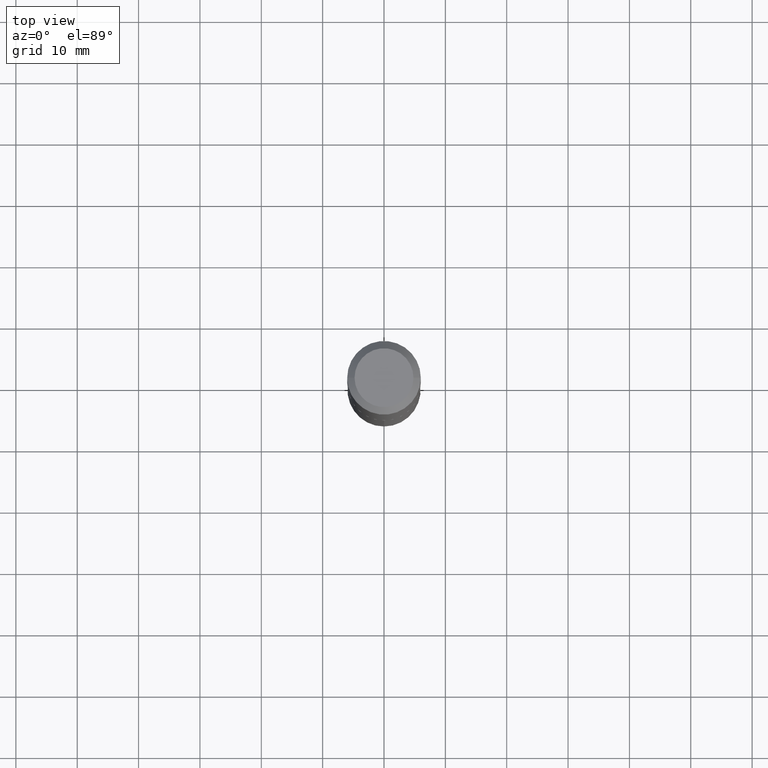
[diagram: clean part render]
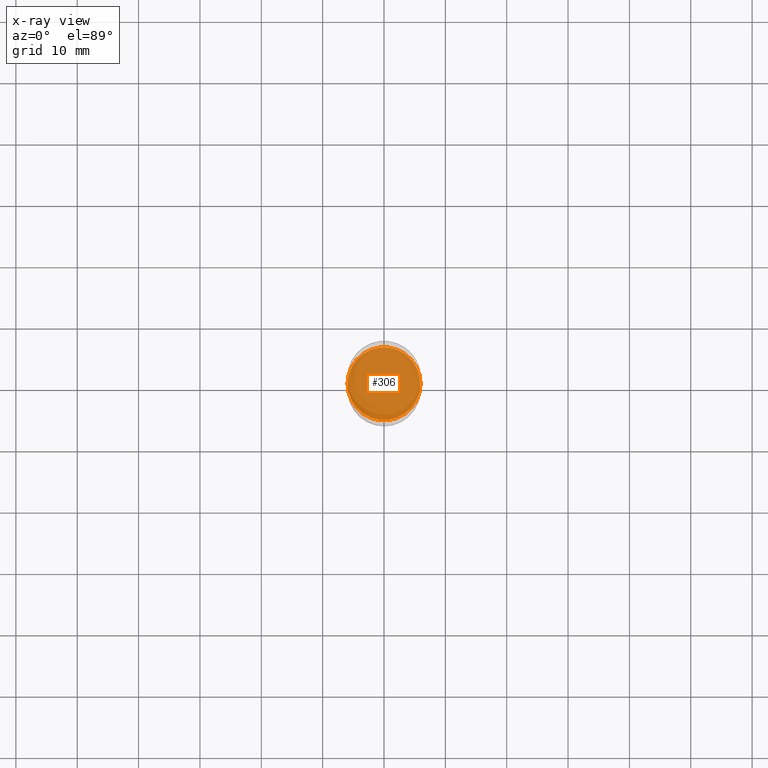
[diagram: x-ray — body ghosted, one internal face saturated and labeled with its STEP entity id]
A machine part, top view, then the same camera in x-ray: the body is ghosted and one INTERNAL B-rep face — a face not visible from any outside direction — is saturated and labeled: STEP entity #306.
In plain terms, the highlighted planar face has unit normal (-0, 0, 1).
Its self-contained STEP definition (entity closure, byte-faithful):
#29 = ORIENTED_EDGE ( 'NONE', *, *, #90, .F. ) ;
#49 = EDGE_CURVE ( 'NONE', #369, #259, #419, .T. ) ;
#67 = CARTESIAN_POINT ( 'NONE',  ( 0.2338999999999999968, -9.732853380159146928E-15, -2.319800000000000306 ) ) ;
#90 = EDGE_CURVE ( 'NONE', #259, #369, #475, .T. ) ;
#94 = CARTESIAN_POINT ( 'NONE',  ( 3.781018395113229375E-29, -1.080896165726276243E-14, -2.319800000000000306 ) ) ;
#106 = DIRECTION ( 'NONE',  ( -2.438088387897960049E-29, 3.491481338843145188E-15, 1.000000000000000000 ) ) ;
#127 = DIRECTION ( 'NONE',  ( -2.445468806185136597E-29, 3.491481338843145583E-15, 1.000000000000000000 ) ) ;
#132 = DIRECTION ( 'NONE',  ( 1.000000000000000000, -6.982962677686263555E-15, 0.000000000000000000 ) ) ;
#146 = PLANE ( 'NONE',  #340 ) ;
#167 = DIRECTION ( 'NONE',  ( -2.445468806185136597E-29, 3.491481338843145583E-15, 1.000000000000000000 ) ) ;
#171 = CARTESIAN_POINT ( 'NONE',  ( 5.672998536588280591E-29, -8.099538409848329813E-15, -2.319800000000000306 ) ) ;
#172 = DIRECTION ( 'NONE',  ( 1.000000000000000000, -6.982962677686265922E-15, 4.876176775795935793E-29 ) ) ;
#180 = AXIS2_PLACEMENT_3D ( 'NONE', #171, #167, #132 ) ;
#259 = VERTEX_POINT ( 'NONE', #67 ) ;
#306 = ADVANCED_FACE ( 'NONE', ( #478 ), #146, .F. ) ;
#310 = AXIS2_PLACEMENT_3D ( 'NONE', #426, #127, #312 ) ;
#312 = DIRECTION ( 'NONE',  ( 1.000000000000000000, -6.982962677686263555E-15, 0.000000000000000000 ) ) ;
#329 = CARTESIAN_POINT ( 'NONE',  ( -0.2338999999999999968, -6.434929723731344300E-15, -2.319800000000000306 ) ) ;
#340 = AXIS2_PLACEMENT_3D ( 'NONE', #94, #106, #172 ) ;
#369 = VERTEX_POINT ( 'NONE', #329 ) ;
#411 = ORIENTED_EDGE ( 'NONE', *, *, #49, .F. ) ;
#419 = CIRCLE ( 'NONE', #310, 0.2338999999999999968 ) ;
#423 = EDGE_LOOP ( 'NONE', ( #29, #411 ) ) ;
#426 = CARTESIAN_POINT ( 'NONE',  ( 5.672998536588280591E-29, -8.099538409848329813E-15, -2.319800000000000306 ) ) ;
#475 = CIRCLE ( 'NONE', #180, 0.2338999999999999968 ) ;
#478 = FACE_OUTER_BOUND ( 'NONE', #423, .T. ) ;